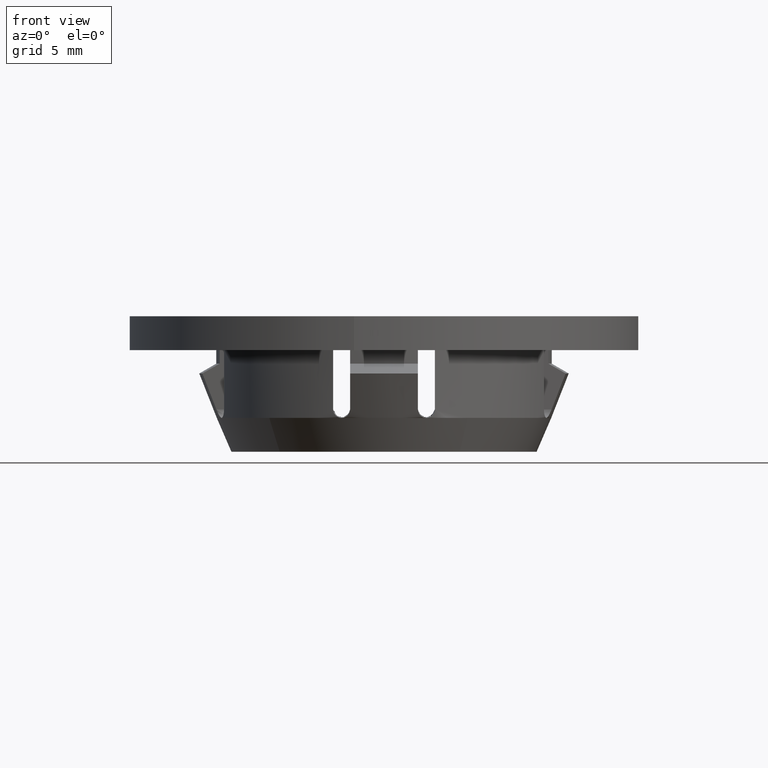
[diagram: clean part render]
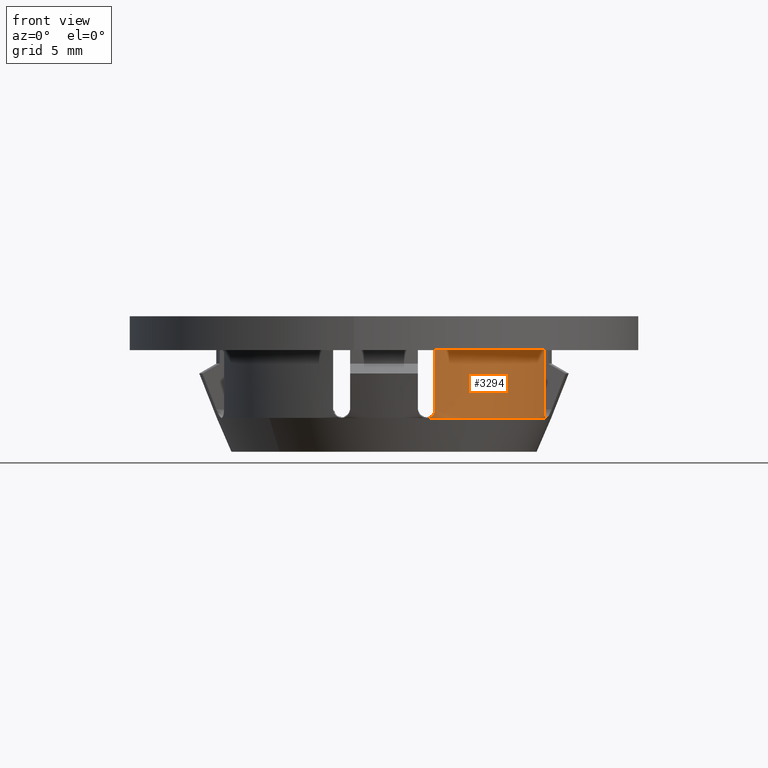
[diagram: same view with one face highlighted and labeled with its STEP entity id]
A machine part, front view. The second image highlights one B-rep face of the part: STEP entity #3294.
In plain terms, the highlighted face is a freeform B-spline surface patch.
Its self-contained STEP definition (entity closure, byte-faithful):
#201=CARTESIAN_POINT('',(9.579144011862471,-2.499999999999885,2.0));
#202=VERTEX_POINT('',#201);
#216=CARTESIAN_POINT('',(4.918047334686460,-8.592020159065569,2.000000000000738));
#217=VERTEX_POINT('',#216);
#218=CARTESIAN_POINT('',(9.579144011862470,-2.499999999999881,2.0));
#219=CARTESIAN_POINT('',(8.528592216443391,-6.525354776096075,2.000000000000000));
#220=CARTESIAN_POINT('',(4.918047334686461,-8.592020159065569,2.000000000000739));
#228=(BOUNDED_CURVE()B_SPLINE_CURVE(2,(#218,#219,#220),.UNSPECIFIED.,.F.,.U.)B_SPLINE_CURVE_WITH_KNOTS((3,3),(0.0,0.745995686547331),.UNSPECIFIED.)CURVE()GEOMETRIC_REPRESENTATION_ITEM()RATIONAL_B_SPLINE_CURVE((1.0,0.897613572085621,0.947986811341474))REPRESENTATION_ITEM(''));
#229=EDGE_CURVE('',#202,#217,#228,.T.);
#269=CARTESIAN_POINT('',(2.500000000000035,-9.579144011862441,2.0));
#270=VERTEX_POINT('',#269);
#271=CARTESIAN_POINT('',(4.918047334686461,-8.592020159065569,2.000000000000739));
#272=CARTESIAN_POINT('',(3.774702238592374,-9.246467564725345,2.000000000000000));
#273=CARTESIAN_POINT('',(2.500000000000032,-9.579144011862431,2.0));
#281=(BOUNDED_CURVE()B_SPLINE_CURVE(2,(#271,#272,#273),.UNSPECIFIED.,.F.,.U.)B_SPLINE_CURVE_WITH_KNOTS((3,3),(0.745995686547331,1.0),.UNSPECIFIED.)CURVE()GEOMETRIC_REPRESENTATION_ITEM()RATIONAL_B_SPLINE_CURVE((0.947986811341474,0.965138411926175,1.0))REPRESENTATION_ITEM(''));
#282=EDGE_CURVE('',#217,#270,#281,.T.);
#1496=CARTESIAN_POINT('',(3.000000000000115,-9.434511116109800,2.499999999999945));
#1497=VERTEX_POINT('',#1496);
#1498=CARTESIAN_POINT('',(3.000000000000115,-9.434511116109800,2.499999999999945));
#1499=CARTESIAN_POINT('',(3.000000000000116,-9.434511116109800,2.466312417437861));
#1500=CARTESIAN_POINT('',(2.996630408619684,-9.435584448021716,2.433234185080211));
#1501=CARTESIAN_POINT('',(2.983464978346550,-9.439755526738656,2.368238656958737));
#1502=CARTESIAN_POINT('',(2.973488538513812,-9.442909938931509,2.335973430886705));
#1503=CARTESIAN_POINT('',(2.947727429600571,-9.450983292982000,2.274974978586164));
#1504=CARTESIAN_POINT('',(2.932007271996151,-9.455882236213663,2.246120639662583));
#1505=CARTESIAN_POINT('',(2.904227437003494,-9.464436426496880,2.205260399098751));
#1506=CARTESIAN_POINT('',(2.894211638574515,-9.467505479129818,2.191995883315597));
#1507=CARTESIAN_POINT('',(2.873165076761302,-9.473913840007864,2.166807597073588));
#1508=CARTESIAN_POINT('',(2.862103171505352,-9.477262884766297,2.154825816364188));
#1509=CARTESIAN_POINT('',(2.827347403842487,-9.487712688695012,2.120659292128395));
#1510=CARTESIAN_POINT('',(2.801978165384833,-9.495247470558695,2.100158455691231));
#1511=CARTESIAN_POINT('',(2.747468028437867,-9.511163209574127,2.064312442425218));
#1512=CARTESIAN_POINT('',(2.718936469063543,-9.519366620846020,2.049333131406951));
#1513=CARTESIAN_POINT('',(2.659411074738669,-9.536167423049914,2.025003249290977));
#1514=CARTESIAN_POINT('',(2.628118097001070,-9.544845480046289,2.015613510065000));
#1515=CARTESIAN_POINT('',(2.564692950899074,-9.562082934034464,2.003150585675414));
#1516=CARTESIAN_POINT('',(2.532561648991691,-9.570645953750113,1.999999999999905));
#1517=CARTESIAN_POINT('',(2.500000000000035,-9.579144011862441,2.0));
#1518=B_SPLINE_CURVE_WITH_KNOTS('',3,(#1498,#1499,#1500,#1501,#1502,#1503,#1504,#1505,#1506,#1507,#1508,#1509,#1510,#1511,#1512,#1513,#1514,#1515,#1516,#1517),.UNSPECIFIED.,.F.,.U.,(4,2,2,2,2,2,2,2,2,4),(0.0,0.125000000000001,0.250000000000002,0.375000000000003,0.437500000000004,0.500000000000004,0.625000000000003,0.750000000000002,0.875000000000001,1.0),.UNSPECIFIED.);
#1519=EDGE_CURVE('',#1497,#270,#1518,.T.);
#1638=CARTESIAN_POINT('',(9.434511116109869,-2.999999999999885,2.499999999999945));
#1639=VERTEX_POINT('',#1638);
#1645=CARTESIAN_POINT('',(9.579144011862471,-2.499999999999885,2.0));
#1646=CARTESIAN_POINT('',(9.570640009026187,-2.532584427138316,2.0));
#1647=CARTESIAN_POINT('',(9.562105557589741,-2.564605592742813,2.003154477799772));
#1648=CARTESIAN_POINT('',(9.544993749984824,-2.627576612311609,2.015486260736453));
#1649=CARTESIAN_POINT('',(9.536339454633771,-2.658796962841867,2.024781134700828));
#1650=CARTESIAN_POINT('',(9.519408943282356,-2.718791064826021,2.049245171632837));
#1651=CARTESIAN_POINT('',(9.511216946284710,-2.747279279666148,2.064229524354713));
#1652=CARTESIAN_POINT('',(9.495451751614121,-2.801283147513791,2.099660875481181));
#1653=CARTESIAN_POINT('',(9.487804666364564,-2.827039489697524,2.120385389567384));
#1654=CARTESIAN_POINT('',(9.473822109687427,-2.873549076907530,2.166049154190266));
#1655=CARTESIAN_POINT('',(9.467442996864648,-2.894459965677537,2.191001145264861));
#1656=CARTESIAN_POINT('',(9.456041174090871,-2.931494619761335,2.245262193879759));
#1657=CARTESIAN_POINT('',(9.451023896233565,-2.947597123585659,2.274734533884308));
#1658=CARTESIAN_POINT('',(9.442966783750629,-2.973307890402636,2.335478402180553));
#1659=CARTESIAN_POINT('',(9.439850115979404,-2.983165994629628,2.367054765298205));
#1660=CARTESIAN_POINT('',(9.435597757053218,-2.996588815764221,2.432744057108496));
#1661=CARTESIAN_POINT('',(9.434511116109972,-3.0,2.466286106344870));
#1662=CARTESIAN_POINT('',(9.434511116109869,-2.999999999999885,2.499999999999945));
#1663=B_SPLINE_CURVE_WITH_KNOTS('',3,(#1645,#1646,#1647,#1648,#1649,#1650,#1651,#1652,#1653,#1654,#1655,#1656,#1657,#1658,#1659,#1660,#1661,#1662),.UNSPECIFIED.,.F.,.U.,(4,2,2,2,2,2,2,2,4),(0.0,0.125000000000000,0.250000000000000,0.375000000000000,0.500000000000000,0.625000000000000,0.750000000000000,0.875000000000000,1.0),.UNSPECIFIED.);
#1664=EDGE_CURVE('',#202,#1639,#1663,.T.);
#1697=CARTESIAN_POINT('',(9.434511116109869,-2.999999999999885,5.999999999999901));
#1698=VERTEX_POINT('',#1697);
#1699=CARTESIAN_POINT('',(9.434511116109869,-2.999999999999885,2.499999999999945));
#1700=CARTESIAN_POINT('',(9.434511116109869,-2.999999999999885,5.999999999999901));
#1701=QUASI_UNIFORM_CURVE('',1,(#1699,#1700),.UNSPECIFIED.,.F.,.U.);
#1702=EDGE_CURVE('',#1639,#1698,#1701,.T.);
#1905=CARTESIAN_POINT('',(3.000000000000115,-9.434511116109800,5.999999999999901));
#1906=VERTEX_POINT('',#1905);
#1907=CARTESIAN_POINT('',(3.000000000000115,-9.434511116109800,5.999999999999901));
#1908=CARTESIAN_POINT('',(3.000000000000115,-9.434511116109800,2.499999999999945));
#1909=QUASI_UNIFORM_CURVE('',1,(#1907,#1908),.UNSPECIFIED.,.F.,.U.);
#1910=EDGE_CURVE('',#1906,#1497,#1909,.T.);
#3127=CARTESIAN_POINT('',(9.434511116109871,-2.999999999999882,5.999999999999890));
#3128=CARTESIAN_POINT('',(7.882095169228006,-7.882095169227806,5.999999999999890));
#3129=CARTESIAN_POINT('',(3.000000000000120,-9.434511116109794,5.999999999999890));
#3137=(BOUNDED_CURVE()B_SPLINE_CURVE(2,(#3127,#3128,#3129),.UNSPECIFIED.,.F.,.U.)CURVE()GEOMETRIC_REPRESENTATION_ITEM()QUASI_UNIFORM_CURVE()RATIONAL_B_SPLINE_CURVE((1.0,0.888134053630381,1.0))REPRESENTATION_ITEM(''));
#3138=EDGE_CURVE('',#1698,#1906,#3137,.T.);
#3271=CARTESIAN_POINT('',(9.600595606156563,-2.416312067396766,1.900000000000002));
#3272=CARTESIAN_POINT('',(9.600595606156563,-2.416312067396766,6.102499999999898));
#3273=CARTESIAN_POINT('',(8.090716250591660,-8.415430021759354,1.900000000000003));
#3274=CARTESIAN_POINT('',(8.090716250591660,-8.415430021759354,6.102499999999899));
#3275=CARTESIAN_POINT('',(2.036857205551987,-9.688199663724468,1.900000000000002));
#3276=CARTESIAN_POINT('',(2.036857205551987,-9.688199663724468,6.102499999999898));
#3284=(BOUNDED_SURFACE()B_SPLINE_SURFACE(1,2,((#3271,#3273,#3275),(#3272,#3274,#3276)),.UNSPECIFIED.,.F.,.F.,.U.)B_SPLINE_SURFACE_WITH_KNOTS((2,2),(3,3),(0.0,4.202499999999896),(0.0,11.355117276048791),.UNSPECIFIED.)GEOMETRIC_REPRESENTATION_ITEM()RATIONAL_B_SPLINE_SURFACE(((1.0,0.848048096156426,1.0),(1.0,0.848048096156426,1.0)))REPRESENTATION_ITEM('')SURFACE());
#3285=ORIENTED_EDGE('',*,*,#282,.F.);
#3286=ORIENTED_EDGE('',*,*,#229,.F.);
#3287=ORIENTED_EDGE('',*,*,#1664,.T.);
#3288=ORIENTED_EDGE('',*,*,#1702,.T.);
#3289=ORIENTED_EDGE('',*,*,#3138,.T.);
#3290=ORIENTED_EDGE('',*,*,#1910,.T.);
#3291=ORIENTED_EDGE('',*,*,#1519,.T.);
#3292=EDGE_LOOP('',(#3285,#3286,#3287,#3288,#3289,#3290,#3291));
#3293=FACE_OUTER_BOUND('',#3292,.T.);
#3294=ADVANCED_FACE('',(#3293),#3284,.T.);